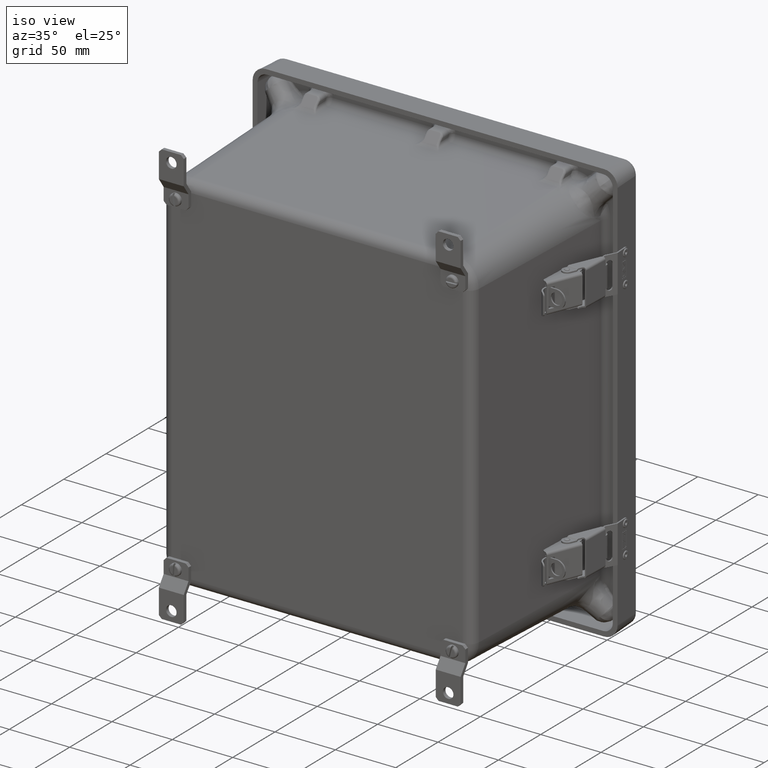
[diagram: clean part render]
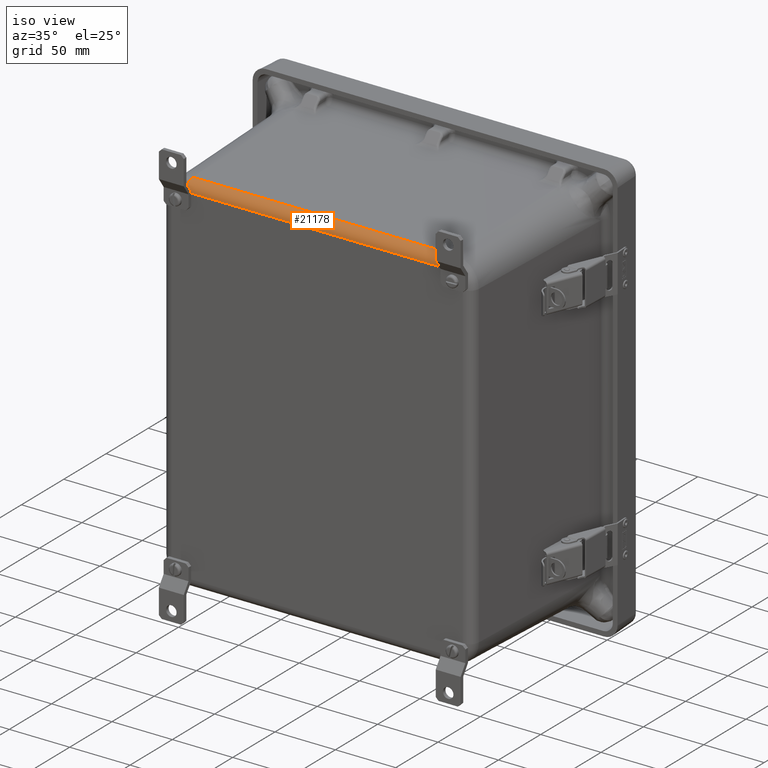
[diagram: same view with one face highlighted and labeled with its STEP entity id]
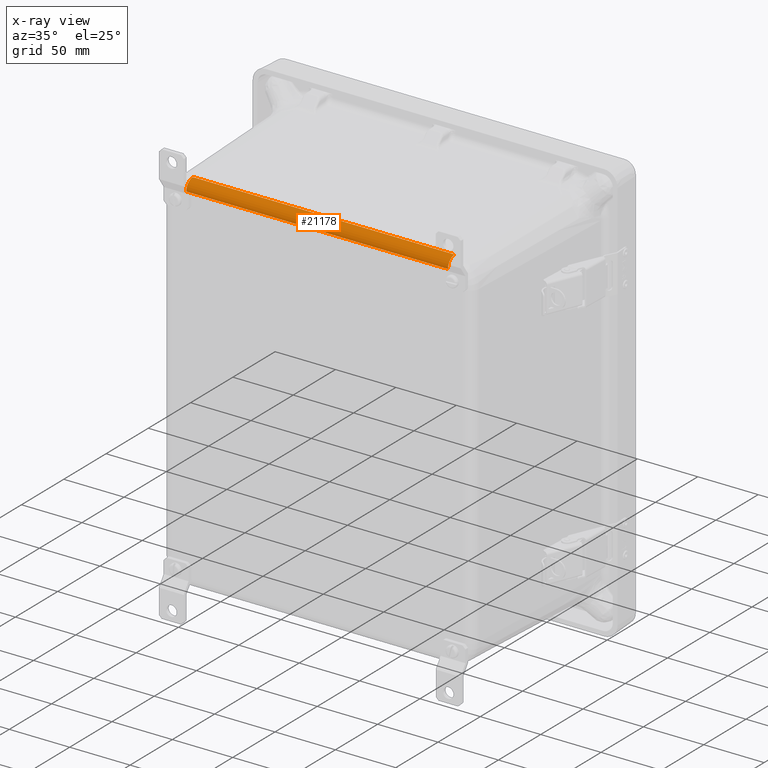
[diagram: x-ray of the same camera — body ghosted, the highlighted face saturated]
A machine part, iso view. The second image highlights one B-rep face of the part: STEP entity #21178.
The next image is the same camera in x-ray: the body ghosted, the highlighted face saturated — about 0% of this face is hidden behind the body in this view.
In plain terms, the highlighted cylindrical surface (edge-blend (fillet) strip) has radius 7.9486 mm, axis along (1, 0, 0).
Its self-contained STEP definition (entity closure, byte-faithful):
#735 = ORIENTED_EDGE ( 'NONE', *, *, #30823, .F. ) ;
#812 = CARTESIAN_POINT ( 'NONE',  ( -4.266925031075250500, -5.815655632989034100, 5.691242168016571200 ) ) ;
#2133 = CARTESIAN_POINT ( 'NONE',  ( 4.267005768924750700, -6.128593132989035300, 5.691242168016571200 ) ) ;
#3905 = CIRCLE ( 'NONE', #46445, 0.3129375000000003100 ) ;
#5027 = DIRECTION ( 'NONE',  ( 0.0000000000000000000, 0.0000000000000000000, -1.000000000000000000 ) ) ;
#6937 = CARTESIAN_POINT ( 'NONE',  ( 4.267005768924750700, -5.815655632989034100, 5.691242168016573000 ) ) ;
#8136 = VECTOR ( 'NONE', #49590, 39.37007874015748100 ) ;
#8620 = VECTOR ( 'NONE', #46419, 39.37007874015748100 ) ;
#8953 = ORIENTED_EDGE ( 'NONE', *, *, #49878, .F. ) ;
#9931 = CYLINDRICAL_SURFACE ( 'NONE', #19512, 0.3129375000000003100 ) ;
#11117 = DIRECTION ( 'NONE',  ( 0.0000000000000000000, 0.0000000000000000000, -1.000000000000000000 ) ) ;
#14982 = VERTEX_POINT ( 'NONE', #30489 ) ;
#17283 = CARTESIAN_POINT ( 'NONE',  ( 4.267005768924750700, -6.128593132989035300, 5.691242168016573000 ) ) ;
#18262 = ORIENTED_EDGE ( 'NONE', *, *, #40369, .T. ) ;
#19022 = DIRECTION ( 'NONE',  ( 0.0000000000000000000, 0.0000000000000000000, -1.000000000000000000 ) ) ;
#19512 = AXIS2_PLACEMENT_3D ( 'NONE', #23039, #44009, #19022 ) ;
#21178 = ADVANCED_FACE ( 'NONE', ( #33356 ), #9931, .T. ) ;
#23039 = CARTESIAN_POINT ( 'NONE',  ( -4.266925031075250500, -5.815655632989034100, 5.691242168016573000 ) ) ;
#24349 = VERTEX_POINT ( 'NONE', #30795 ) ;
#29917 = DIRECTION ( 'NONE',  ( 1.000000000000000000, 0.0000000000000000000, 0.0000000000000000000 ) ) ;
#30380 = CIRCLE ( 'NONE', #52602, 0.3129375000000003100 ) ;
#30489 = CARTESIAN_POINT ( 'NONE',  ( -4.266925031075250500, -5.826576994238370900, 6.003989034946861200 ) ) ;
#30795 = CARTESIAN_POINT ( 'NONE',  ( 4.267005768924750700, -5.826576994238370900, 6.003989034946861200 ) ) ;
#30823 = EDGE_CURVE ( 'NONE', #31583, #34156, #43122, .T. ) ;
#31583 = VERTEX_POINT ( 'NONE', #2133 ) ;
#32673 = EDGE_CURVE ( 'NONE', #24349, #31583, #3905, .T. ) ;
#33356 = FACE_OUTER_BOUND ( 'NONE', #42558, .T. ) ;
#34156 = VERTEX_POINT ( 'NONE', #51393 ) ;
#36036 = DIRECTION ( 'NONE',  ( 1.000000000000000000, 0.0000000000000000000, 0.0000000000000000000 ) ) ;
#40369 = EDGE_CURVE ( 'NONE', #14982, #34156, #30380, .T. ) ;
#41417 = CARTESIAN_POINT ( 'NONE',  ( -4.266925031075250500, -5.826576994238372700, 6.003989034946861200 ) ) ;
#42558 = EDGE_LOOP ( 'NONE', ( #18262, #735, #50223, #8953 ) ) ;
#42648 = LINE ( 'NONE', #41417, #8136 ) ;
#43122 = LINE ( 'NONE', #17283, #8620 ) ;
#44009 = DIRECTION ( 'NONE',  ( 1.000000000000000000, 0.0000000000000000000, 0.0000000000000000000 ) ) ;
#46419 = DIRECTION ( 'NONE',  ( -1.000000000000000000, -0.0000000000000000000, -0.0000000000000000000 ) ) ;
#46445 = AXIS2_PLACEMENT_3D ( 'NONE', #6937, #36036, #11117 ) ;
#49590 = DIRECTION ( 'NONE',  ( 1.000000000000000000, 0.0000000000000000000, 0.0000000000000000000 ) ) ;
#49878 = EDGE_CURVE ( 'NONE', #14982, #24349, #42648, .T. ) ;
#50223 = ORIENTED_EDGE ( 'NONE', *, *, #32673, .F. ) ;
#51393 = CARTESIAN_POINT ( 'NONE',  ( -4.266925031075250500, -6.128593132989035300, 5.691242168016573000 ) ) ;
#52602 = AXIS2_PLACEMENT_3D ( 'NONE', #812, #29917, #5027 ) ;